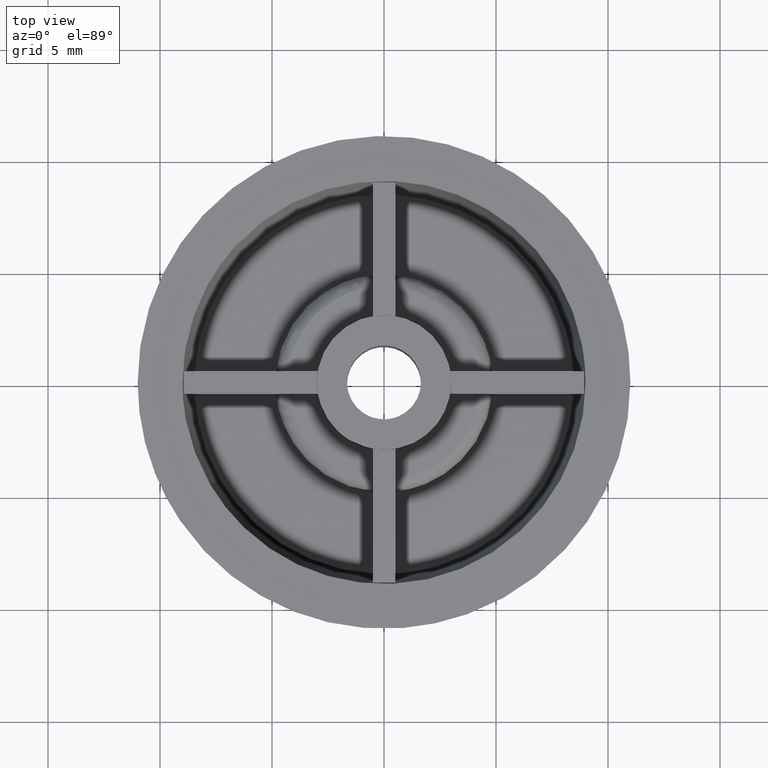
[diagram: clean part render]
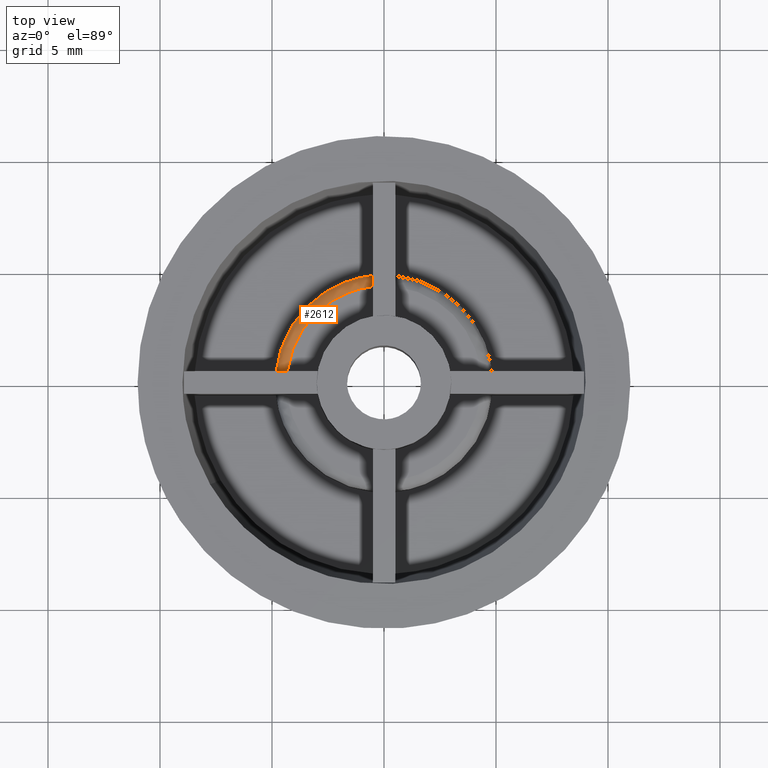
[diagram: same view with one face highlighted and labeled with its STEP entity id]
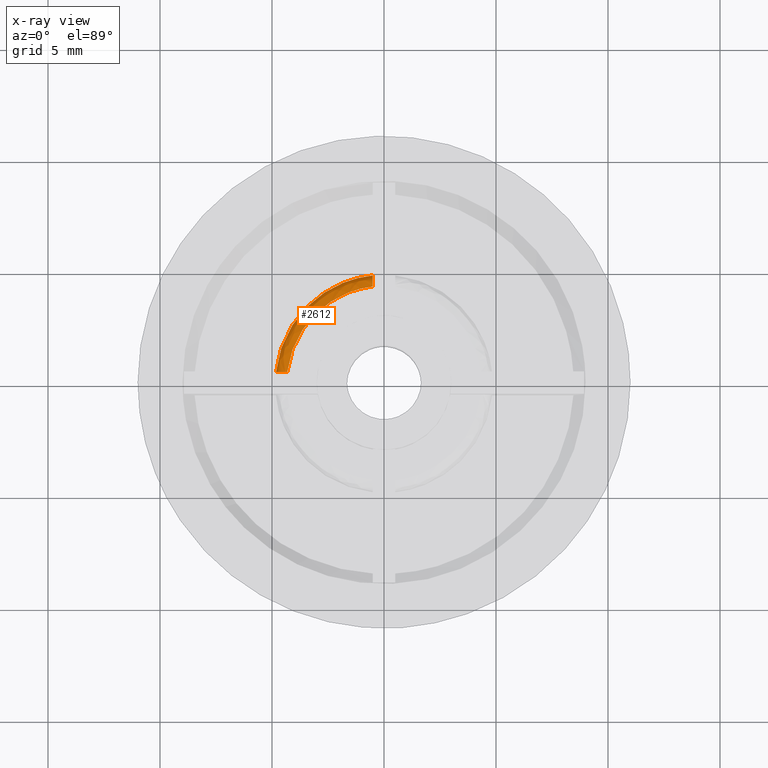
[diagram: x-ray of the same camera — body ghosted, the highlighted face saturated]
A machine part, top view. The second image highlights one B-rep face of the part: STEP entity #2612.
The next image is the same camera in x-ray: the body ghosted, the highlighted face saturated — about 0% of this face is hidden behind the body in this view.
In plain terms, the highlighted face is a freeform B-spline surface patch.
Its self-contained STEP definition (entity closure, byte-faithful):
#1758=CARTESIAN_POINT('',(-0.500000000000000,4.824157957612910,7.0));
#1759=VERTEX_POINT('',#1758);
#1765=CARTESIAN_POINT('',(-0.500000000000000,4.321168823362496,7.500000000000000));
#1766=VERTEX_POINT('',#1765);
#1767=CARTESIAN_POINT('',(-0.500000000000000,4.321168823362495,7.500000000000007));
#1768=CARTESIAN_POINT('',(-0.500000000000000,4.337504227299030,7.500000000000007));
#1769=CARTESIAN_POINT('',(-0.500000000000000,4.353859333722471,7.499211973442483));
#1770=CARTESIAN_POINT('',(-0.500000000000000,4.386609830980731,7.496024692964130));
#1771=CARTESIAN_POINT('',(-0.500000000000000,4.403065329640256,7.493606197616386));
#1772=CARTESIAN_POINT('',(-0.500000000000000,4.451459965845267,7.484056484699206));
#1773=CARTESIAN_POINT('',(-0.500000000000000,4.482739467916002,7.474646788212748));
#1774=CARTESIAN_POINT('',(-0.500000000000000,4.543349814579678,7.449798253620338));
#1775=CARTESIAN_POINT('',(-0.500000000000000,4.572866045882202,7.434169265025126));
#1776=CARTESIAN_POINT('',(-0.500000000000000,4.627437362102474,7.398021206783287));
#1777=CARTESIAN_POINT('',(-0.500000000000000,4.652800276533130,7.377425467098323));
#1778=CARTESIAN_POINT('',(-0.500000000000000,4.687896797961548,7.342665702599631));
#1779=CARTESIAN_POINT('',(-0.500000000000000,4.699118905255894,7.330393486879968));
#1780=CARTESIAN_POINT('',(-0.500000000000000,4.720071373930241,7.305077609421550));
#1781=CARTESIAN_POINT('',(-0.500000000000000,4.729868163393979,7.291974481763558));
#1782=CARTESIAN_POINT('',(-0.500000000000000,4.757254292273532,7.251351871953803));
#1783=CARTESIAN_POINT('',(-0.500000000000000,4.772914992470579,7.222397269302301));
#1784=CARTESIAN_POINT('',(-0.500000000000000,4.798406545508366,7.161395758401860));
#1785=CARTESIAN_POINT('',(-0.500000000000000,4.807951585932855,7.130108355480081));
#1786=CARTESIAN_POINT('',(-0.500000000000000,4.820840429989334,7.066009466707006));
#1787=CARTESIAN_POINT('',(-0.500000000000000,4.824157957612919,7.032819416421204));
#1788=CARTESIAN_POINT('',(-0.500000000000000,4.824157957612920,6.999999999999999));
#1789=B_SPLINE_CURVE_WITH_KNOTS('',3,(#1767,#1768,#1769,#1770,#1771,#1772,#1773,#1774,#1775,#1776,#1777,#1778,#1779,#1780,#1781,#1782,#1783,#1784,#1785,#1786,#1787,#1788),.UNSPECIFIED.,.F.,.U.,(4,2,2,2,2,2,2,2,2,2,4),(0.0,0.062500000000001,0.125000000000001,0.249999999999999,0.374999999999997,0.499999999999995,0.562499999999994,0.624999999999993,0.749999999999995,0.874999999999998,1.0),.UNSPECIFIED.);
#1790=EDGE_CURVE('',#1766,#1759,#1789,.T.);
#1830=CARTESIAN_POINT('',(-4.321168823362496,0.500000000000000,7.500000000000000));
#1831=VERTEX_POINT('',#1830);
#1837=CARTESIAN_POINT('',(-4.824157957612910,0.500000000000000,7.0));
#1838=VERTEX_POINT('',#1837);
#1839=CARTESIAN_POINT('',(-4.824157957612913,0.500000000000000,7.0));
#1840=CARTESIAN_POINT('',(-4.824157957612914,0.500000000000000,7.032645447949379));
#1841=CARTESIAN_POINT('',(-4.820924457025002,0.500000000000000,7.065521440847913));
#1842=CARTESIAN_POINT('',(-4.807949475217884,0.500000000000000,7.130188553540512));
#1843=CARTESIAN_POINT('',(-4.798369992618651,0.500000000000000,7.161429743525323));
#1844=CARTESIAN_POINT('',(-4.773192617891851,0.500000000000000,7.221785886180782));
#1845=CARTESIAN_POINT('',(-4.757411092590439,0.500000000000000,7.251119646841526));
#1846=CARTESIAN_POINT('',(-4.720579229838121,0.500000000000000,7.305752655118732));
#1847=CARTESIAN_POINT('',(-4.699293909182942,0.500000000000000,7.331405144947090));
#1848=CARTESIAN_POINT('',(-4.652680154233987,0.500000000000000,7.377516993085397));
#1849=CARTESIAN_POINT('',(-4.627343942648579,0.500000000000000,7.398099187305215));
#1850=CARTESIAN_POINT('',(-4.572615330371125,0.500000000000000,7.434319138052898));
#1851=CARTESIAN_POINT('',(-4.543162909911472,0.500000000000000,7.449883448683353));
#1852=CARTESIAN_POINT('',(-4.482699323622832,0.500000000000000,7.474654644585909));
#1853=CARTESIAN_POINT('',(-4.451388770468925,0.500000000000000,7.484086231058665));
#1854=CARTESIAN_POINT('',(-4.386540690803041,0.500000000000000,7.496851194204412));
#1855=CARTESIAN_POINT('',(-4.353816591912271,0.500000000000000,7.500000000000003));
#1856=CARTESIAN_POINT('',(-4.321168823362496,0.500000000000000,7.500000000000004));
#1857=B_SPLINE_CURVE_WITH_KNOTS('',3,(#1839,#1840,#1841,#1842,#1843,#1844,#1845,#1846,#1847,#1848,#1849,#1850,#1851,#1852,#1853,#1854,#1855,#1856),.UNSPECIFIED.,.F.,.U.,(4,2,2,2,2,2,2,2,4),(0.0,0.125000000000000,0.250000000000000,0.375000000000000,0.500000000000000,0.625000000000000,0.750000000000000,0.875000000000000,1.0),.UNSPECIFIED.);
#1858=EDGE_CURVE('',#1838,#1831,#1857,.T.);
#2524=CARTESIAN_POINT('',(-4.321168823362494,0.500000000000000,7.500000000000000));
#2525=CARTESIAN_POINT('',(-3.924878114266619,3.924878114266620,7.500000000000000));
#2526=CARTESIAN_POINT('',(-0.500000000000000,4.321168823362494,7.500000000000000));
#2534=(BOUNDED_CURVE()B_SPLINE_CURVE(2,(#2524,#2525,#2526),.UNSPECIFIED.,.F.,.U.)CURVE()GEOMETRIC_REPRESENTATION_ITEM()QUASI_UNIFORM_CURVE()RATIONAL_B_SPLINE_CURVE((1.0,0.783696820286158,1.0))REPRESENTATION_ITEM(''));
#2535=EDGE_CURVE('',#1831,#1766,#2534,.T.);
#2577=CARTESIAN_POINT('',(-4.311696138477576,0.176928254176978,7.498796173820074));
#2578=CARTESIAN_POINT('',(-4.148715853605778,4.148715960999591,7.498796173820072));
#2579=CARTESIAN_POINT('',(-0.176928142564253,4.311696143057547,7.498796173820075));
#2580=CARTESIAN_POINT('',(-4.884758815195962,0.200443589133205,7.538667866101911));
#2581=CARTESIAN_POINT('',(-4.700117004256158,4.700117125923562,7.538667866101912));
#2582=CARTESIAN_POINT('',(-0.200443462686158,4.884758820384652,7.538667866101914));
#2583=CARTESIAN_POINT('',(-4.844706039207392,0.198800043877926,6.965137894639420));
#2584=CARTESIAN_POINT('',(-4.661578206208254,4.661578326878042,6.965137894639419));
#2585=CARTESIAN_POINT('',(-0.198799918467686,4.844706044353535,6.965137894639422));
#2593=(BOUNDED_SURFACE()B_SPLINE_SURFACE(2,2,((#2577,#2580,#2583),(#2578,#2581,#2584),(#2579,#2582,#2585)),.UNSPECIFIED.,.F.,.F.,.U.)B_SPLINE_SURFACE_WITH_KNOTS((3,3),(3,3),(0.0,7.571639126852410),(0.0,0.911185203767678),.UNSPECIFIED.)GEOMETRIC_REPRESENTATION_ITEM()RATIONAL_B_SPLINE_SURFACE(((0.846827772252001,0.554168117097841,0.842137056786984),(0.622844851185342,0.407592629499581,0.619394813206554),(0.846827780809716,0.554168122698050,0.842137065297296)))REPRESENTATION_ITEM('')SURFACE());
#2594=ORIENTED_EDGE('',*,*,#2535,.T.);
#2595=ORIENTED_EDGE('',*,*,#1790,.T.);
#2596=CARTESIAN_POINT('',(-4.824157957612914,0.500000000000000,7.0));
#2597=CARTESIAN_POINT('',(-4.418069521465947,4.418069521465947,6.999999999999999));
#2598=CARTESIAN_POINT('',(-0.500000000000001,4.824157957612914,7.0));
#2606=(BOUNDED_CURVE()B_SPLINE_CURVE(2,(#2596,#2597,#2598),.UNSPECIFIED.,.F.,.U.)CURVE()GEOMETRIC_REPRESENTATION_ITEM()QUASI_UNIFORM_CURVE()RATIONAL_B_SPLINE_CURVE((1.0,0.776236741430188,1.0))REPRESENTATION_ITEM(''));
#2607=EDGE_CURVE('',#1838,#1759,#2606,.T.);
#2608=ORIENTED_EDGE('',*,*,#2607,.F.);
#2609=ORIENTED_EDGE('',*,*,#1858,.T.);
#2610=EDGE_LOOP('',(#2594,#2595,#2608,#2609));
#2611=FACE_OUTER_BOUND('',#2610,.T.);
#2612=ADVANCED_FACE('',(#2611),#2593,.T.);